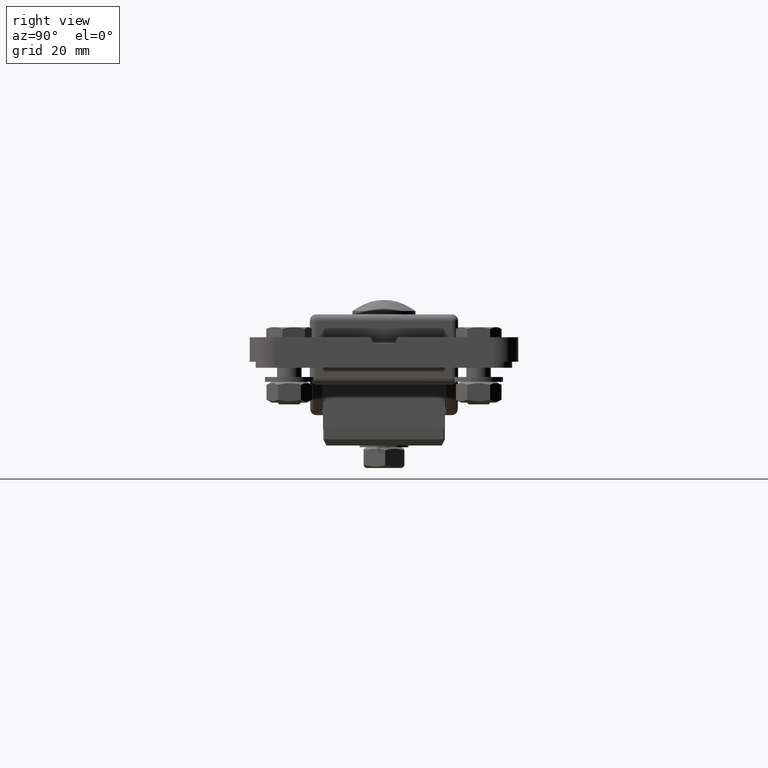
[diagram: clean part render]
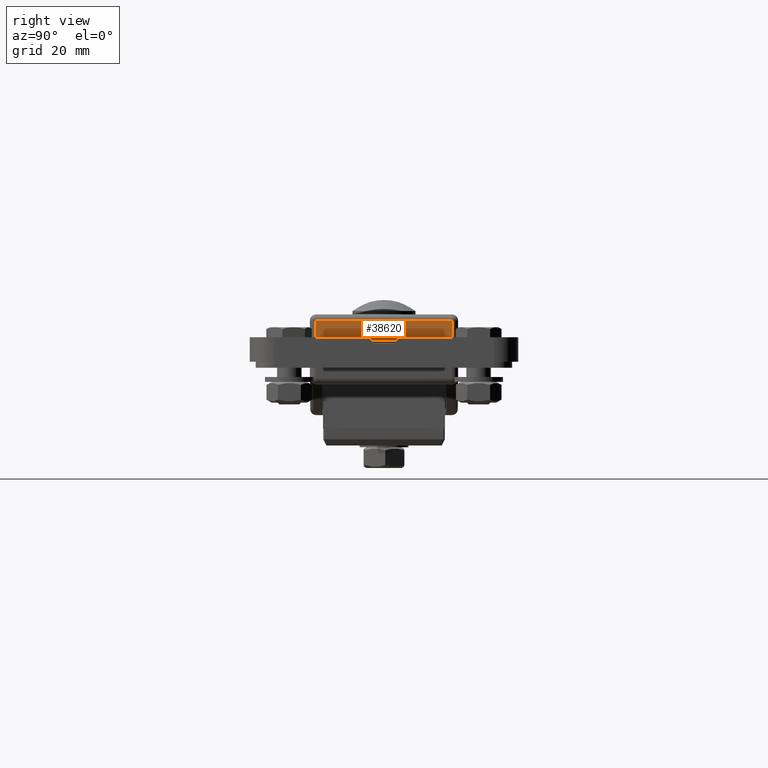
[diagram: same view with one face highlighted and labeled with its STEP entity id]
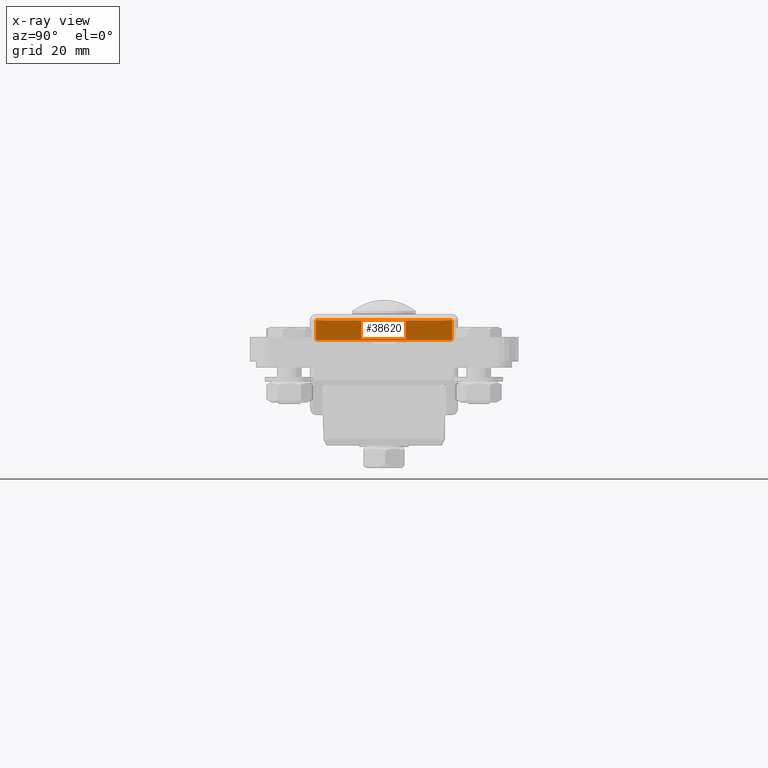
[diagram: x-ray of the same camera — body ghosted, the highlighted face saturated]
A machine part, right view. The second image highlights one B-rep face of the part: STEP entity #38620.
The next image is the same camera in x-ray: the body ghosted, the highlighted face saturated — about 0% of this face is hidden behind the body in this view.
In plain terms, the highlighted planar face has unit normal (1, -0, 0.0087).
Its self-contained STEP definition (entity closure, byte-faithful):
#37799=CARTESIAN_POINT('',(50.574254531543019,-22.324330685414647,14.491273464501631));
#37800=VERTEX_POINT('',#37799);
#37850=CARTESIAN_POINT('',(50.574254531543033,22.324330685414683,14.491273464501631));
#37851=VERTEX_POINT('',#37850);
#37859=CARTESIAN_POINT('',(50.574254531543033,22.324330685414683,14.491273464501633));
#37860=DIRECTION('',(0.0,-1.0,0.0));
#37861=VECTOR('',#37860,44.648661370829331);
#37862=LINE('',#37859,#37861);
#37863=EDGE_CURVE('',#37851,#37800,#37862,.T.);
#38494=CARTESIAN_POINT('',(50.51730142493841,22.267377578810056,21.017453070996744));
#38495=VERTEX_POINT('',#38494);
#38503=CARTESIAN_POINT('',(50.517301424938402,22.267377578810056,21.017453070996741));
#38504=DIRECTION('',(0.008726203243945,0.008726203243944,-0.99992385047757));
#38505=VECTOR('',#38504,6.526676609802001);
#38506=LINE('',#38503,#38505);
#38507=EDGE_CURVE('',#38495,#37851,#38506,.T.);
#38560=CARTESIAN_POINT('',(50.517301424938395,-22.267377578810013,21.017453070996744));
#38561=VERTEX_POINT('',#38560);
#38562=CARTESIAN_POINT('',(50.574254531543019,-22.324330685414644,14.491273464501628));
#38563=DIRECTION('',(-0.008726203243943,0.008726203243944,0.99992385047757));
#38564=VECTOR('',#38563,6.526676609802005);
#38565=LINE('',#38562,#38564);
#38566=EDGE_CURVE('',#37800,#38561,#38565,.T.);
#38604=CARTESIAN_POINT('',(50.700710316462619,24.250000000000011,0.000875769524062));
#38605=DIRECTION('',(0.999961923064171,-1.831226E-016,0.008726535498374));
#38606=DIRECTION('',(0.008726535498374,-1.598087E-018,-0.999961923064171));
#38607=AXIS2_PLACEMENT_3D('',#38604,#38605,#38606);
#38608=PLANE('',#38607);
#38609=ORIENTED_EDGE('',*,*,#37863,.F.);
#38610=ORIENTED_EDGE('',*,*,#38507,.F.);
#38611=CARTESIAN_POINT('',(50.517301424938402,-22.267377578810013,21.017453070996744));
#38612=DIRECTION('',(0.0,1.0,0.0));
#38613=VECTOR('',#38612,44.534755157620069);
#38614=LINE('',#38611,#38613);
#38615=EDGE_CURVE('',#38561,#38495,#38614,.T.);
#38616=ORIENTED_EDGE('',*,*,#38615,.F.);
#38617=ORIENTED_EDGE('',*,*,#38566,.F.);
#38618=EDGE_LOOP('',(#38609,#38610,#38616,#38617));
#38619=FACE_OUTER_BOUND('',#38618,.T.);
#38620=ADVANCED_FACE('',(#38619),#38608,.T.);